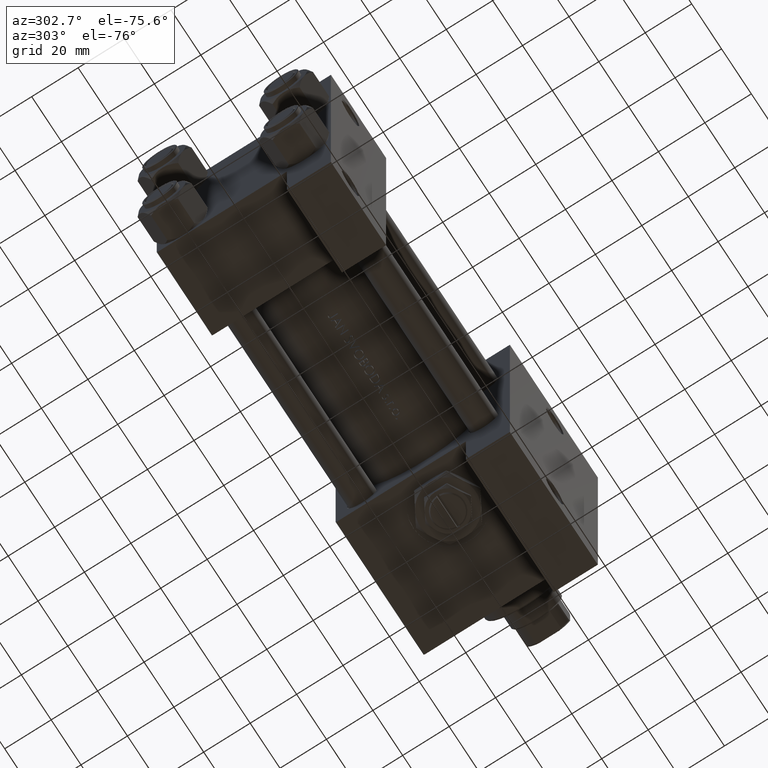
[diagram: clean part render]
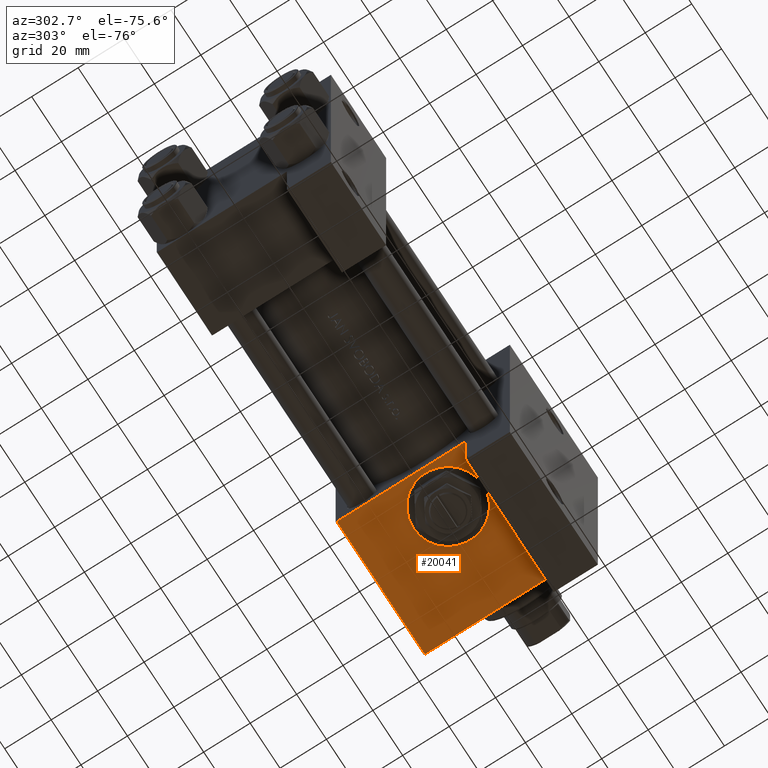
[diagram: same view with one face highlighted and labeled with its STEP entity id]
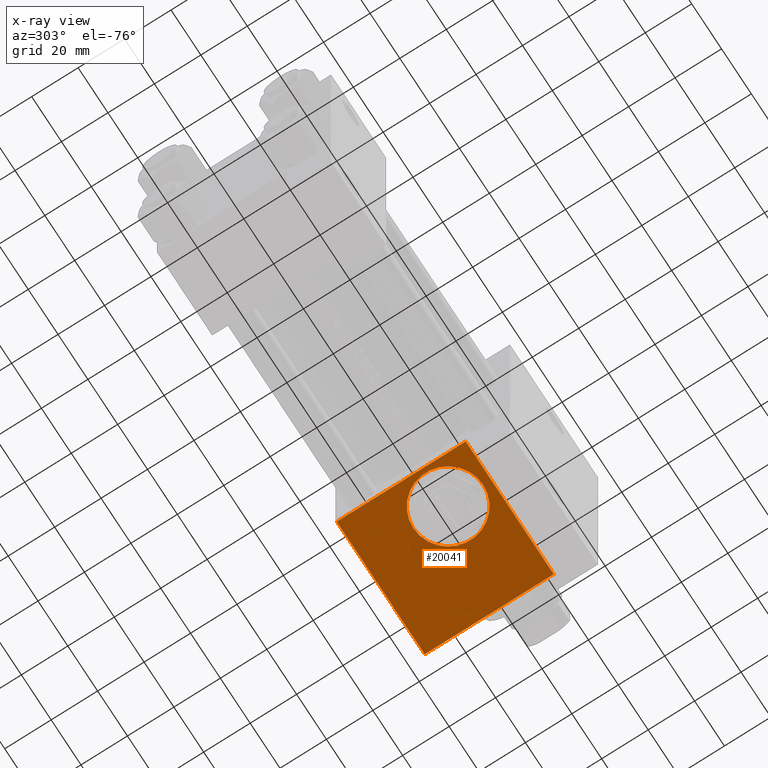
[diagram: x-ray of the same camera — body ghosted, the highlighted face saturated]
A machine part, auxiliary view. The second image highlights one B-rep face of the part: STEP entity #20041.
The next image is the same camera in x-ray: the body ghosted, the highlighted face saturated — about 0% of this face is hidden behind the body in this view.
In plain terms, the highlighted planar face has unit normal (0, 0, -1).
Its self-contained STEP definition (entity closure, byte-faithful):
#2395 = AXIS2_PLACEMENT_3D ( 'NONE', #16422, #27630, #19419 ) ;
#2987 = EDGE_CURVE ( 'NONE', #25558, #41734, #10923, .T. ) ;
#3142 = EDGE_CURVE ( 'NONE', #3757, #29146, #32167, .T. ) ;
#3282 = CARTESIAN_POINT ( 'NONE',  ( 179.0000000000000000, 37.49999999999999289, -18.50000000000000000 ) ) ;
#3298 = CARTESIAN_POINT ( 'NONE',  ( 137.0000000000000000, 37.50000000000000000, -15.00000000000002487 ) ) ;
#3757 = VERTEX_POINT ( 'NONE', #29216 ) ;
#5527 = DIRECTION ( 'NONE',  ( 1.000000000000000000, 0.000000000000000000, 0.000000000000000000 ) ) ;
#6678 = PLANE ( 'NONE',  #20394 ) ;
#8057 = CARTESIAN_POINT ( 'NONE',  ( 137.0000000000000000, 37.50000000000000000, 0.000000000000000000 ) ) ;
#8514 = VECTOR ( 'NONE', #30142, 1000.000000000000000 ) ;
#8657 = DIRECTION ( 'NONE',  ( 0.000000000000000000, 0.000000000000000000, -1.000000000000000000 ) ) ;
#9950 = DIRECTION ( 'NONE',  ( 0.000000000000000000, -0.000000000000000000, 1.000000000000000000 ) ) ;
#10433 = EDGE_CURVE ( 'NONE', #29146, #22988, #42774, .T. ) ;
#10440 = CARTESIAN_POINT ( 'NONE',  ( 179.0000000000000000, 37.50000000000000000, 37.49999999999999289 ) ) ;
#10923 = CIRCLE ( 'NONE', #38788, 15.00000000000002487 ) ;
#10994 = LINE ( 'NONE', #41862, #39055 ) ;
#12042 = EDGE_LOOP ( 'NONE', ( #39275, #43984 ) ) ;
#14162 = DIRECTION ( 'NONE',  ( -0.000000000000000000, 1.000000000000000000, 0.000000000000000000 ) ) ;
#14188 = VERTEX_POINT ( 'NONE', #33640 ) ;
#16422 = CARTESIAN_POINT ( 'NONE',  ( 137.0000000000000000, 37.50000000000000000, 0.000000000000000000 ) ) ;
#16745 = CIRCLE ( 'NONE', #2395, 15.00000000000002487 ) ;
#17882 = FACE_OUTER_BOUND ( 'NONE', #31423, .T. ) ;
#19419 = DIRECTION ( 'NONE',  ( 0.000000000000000000, 0.000000000000000000, 1.000000000000000000 ) ) ;
#19496 = DIRECTION ( 'NONE',  ( 0.000000000000000000, 1.000000000000000000, 0.000000000000000000 ) ) ;
#19896 = ORIENTED_EDGE ( 'NONE', *, *, #29699, .T. ) ;
#20041 = ADVANCED_FACE ( 'NONE', ( #33073, #17882 ), #6678, .T. ) ;
#20394 = AXIS2_PLACEMENT_3D ( 'NONE', #10440, #14162, #9950 ) ;
#21879 = EDGE_CURVE ( 'NONE', #3757, #14188, #44621, .T. ) ;
#22988 = VERTEX_POINT ( 'NONE', #3282 ) ;
#24275 = CARTESIAN_POINT ( 'NONE',  ( 137.0000000000000000, 37.50000000000000000, 15.00000000000002487 ) ) ;
#25558 = VERTEX_POINT ( 'NONE', #24275 ) ;
#25681 = CARTESIAN_POINT ( 'NONE',  ( 120.0000000000000000, 37.50000000000000000, 37.49999999999999289 ) ) ;
#27630 = DIRECTION ( 'NONE',  ( 0.000000000000000000, 1.000000000000000000, 0.000000000000000000 ) ) ;
#29146 = VERTEX_POINT ( 'NONE', #37561 ) ;
#29216 = CARTESIAN_POINT ( 'NONE',  ( 120.0000000000000000, 37.50000000000000000, 37.00000000000004974 ) ) ;
#29699 = EDGE_CURVE ( 'NONE', #22988, #14188, #10994, .T. ) ;
#30142 = DIRECTION ( 'NONE',  ( 0.000000000000000000, 0.000000000000000000, -1.000000000000000000 ) ) ;
#30953 = DIRECTION ( 'NONE',  ( 0.000000000000000000, 0.000000000000000000, 1.000000000000000000 ) ) ;
#31062 = VECTOR ( 'NONE', #8657, 1000.000000000000000 ) ;
#31315 = CARTESIAN_POINT ( 'NONE',  ( 179.0000000000000000, 37.50000000000000000, 37.49999999999999289 ) ) ;
#31423 = EDGE_LOOP ( 'NONE', ( #47545, #33815, #39802, #19896 ) ) ;
#32167 = LINE ( 'NONE', #35676, #33207 ) ;
#33067 = EDGE_CURVE ( 'NONE', #41734, #25558, #16745, .T. ) ;
#33073 = FACE_BOUND ( 'NONE', #12042, .T. ) ;
#33207 = VECTOR ( 'NONE', #5527, 1000.000000000000000 ) ;
#33640 = CARTESIAN_POINT ( 'NONE',  ( 120.0000000000000000, 37.50000000000000000, -18.50000000000000355 ) ) ;
#33815 = ORIENTED_EDGE ( 'NONE', *, *, #3142, .T. ) ;
#35676 = CARTESIAN_POINT ( 'NONE',  ( 179.0000000000000000, 37.50000000000000000, 37.00000000000004974 ) ) ;
#37561 = CARTESIAN_POINT ( 'NONE',  ( 179.0000000000000000, 37.50000000000000000, 37.00000000000004974 ) ) ;
#38394 = DIRECTION ( 'NONE',  ( -1.000000000000000000, 1.176083712526648949E-16, -0.000000000000000000 ) ) ;
#38788 = AXIS2_PLACEMENT_3D ( 'NONE', #8057, #19496, #30953 ) ;
#39055 = VECTOR ( 'NONE', #38394, 1000.000000000000000 ) ;
#39275 = ORIENTED_EDGE ( 'NONE', *, *, #2987, .F. ) ;
#39802 = ORIENTED_EDGE ( 'NONE', *, *, #10433, .T. ) ;
#41734 = VERTEX_POINT ( 'NONE', #3298 ) ;
#41862 = CARTESIAN_POINT ( 'NONE',  ( 120.0000000000000000, 37.50000000000000000, -18.50000000000000000 ) ) ;
#42774 = LINE ( 'NONE', #31315, #31062 ) ;
#43984 = ORIENTED_EDGE ( 'NONE', *, *, #33067, .F. ) ;
#44621 = LINE ( 'NONE', #25681, #8514 ) ;
#47545 = ORIENTED_EDGE ( 'NONE', *, *, #21879, .F. ) ;